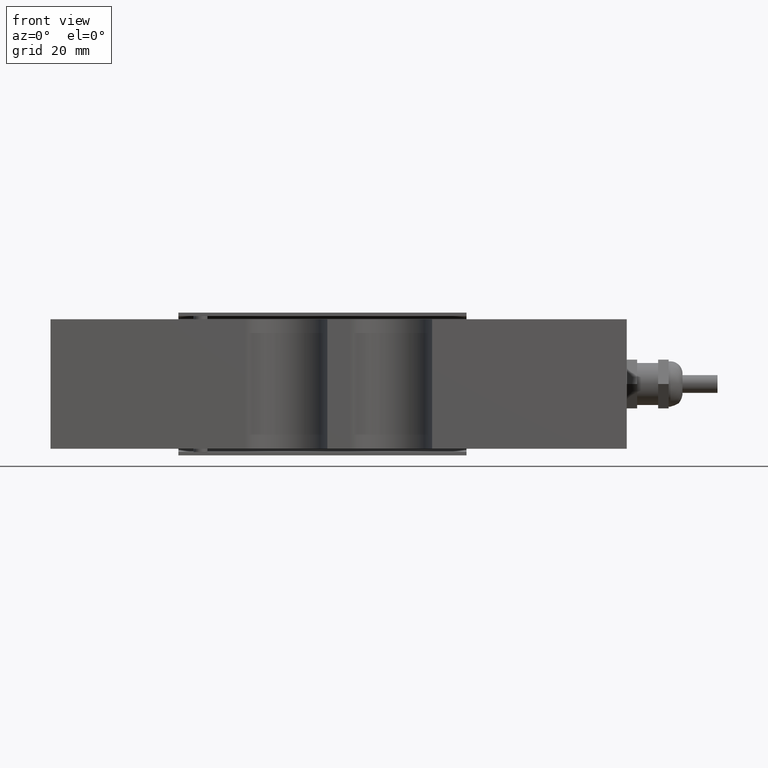
[diagram: clean part render]
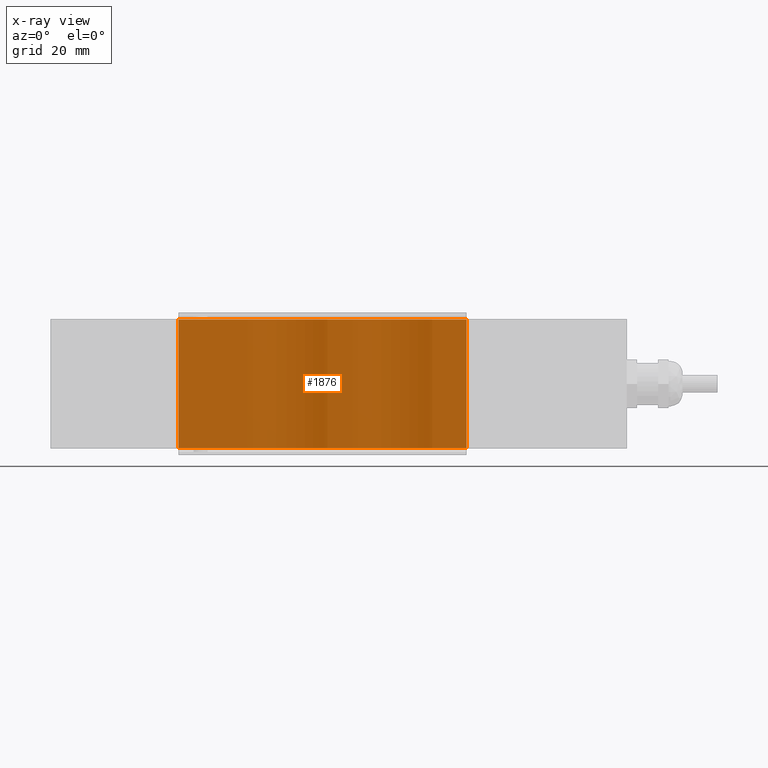
[diagram: x-ray — body ghosted, one internal face saturated and labeled with its STEP entity id]
A machine part, front view, then the same camera in x-ray: the body is ghosted and one INTERNAL B-rep face — a face not visible from any outside direction — is saturated and labeled: STEP entity #1876.
In plain terms, the highlighted planar face has unit normal (0, -1, 0).
Its self-contained STEP definition (entity closure, byte-faithful):
#141=PLANE('',#2060);
#252=FACE_OUTER_BOUND('',#386,.T.);
#386=EDGE_LOOP('',(#1672,#1673,#1674,#1675));
#534=LINE('',#4357,#690);
#535=LINE('',#4361,#691);
#536=LINE('',#4363,#692);
#537=LINE('',#4364,#693);
#690=VECTOR('',#2523,0.393700787401575);
#691=VECTOR('',#2528,0.0566929133858268);
#692=VECTOR('',#2529,0.393700787401575);
#693=VECTOR('',#2530,0.0566929133858268);
#923=VERTEX_POINT('',#4343);
#924=VERTEX_POINT('',#4347);
#926=VERTEX_POINT('',#4360);
#927=VERTEX_POINT('',#4362);
#1175=EDGE_CURVE('',#923,#924,#534,.T.);
#1176=EDGE_CURVE('',#924,#926,#535,.T.);
#1177=EDGE_CURVE('',#926,#927,#536,.T.);
#1178=EDGE_CURVE('',#923,#927,#537,.T.);
#1672=ORIENTED_EDGE('',*,*,#1175,.T.);
#1673=ORIENTED_EDGE('',*,*,#1176,.T.);
#1674=ORIENTED_EDGE('',*,*,#1177,.T.);
#1675=ORIENTED_EDGE('',*,*,#1178,.F.);
#1876=ADVANCED_FACE('',(#252),#141,.T.);
#2060=AXIS2_PLACEMENT_3D('',#4359,#2526,#2527);
#2523=DIRECTION('',(1.,0.,0.));
#2526=DIRECTION('center_axis',(0.,-1.,1.74574066942157E-15));
#2527=DIRECTION('ref_axis',(-1.,0.,0.));
#2528=DIRECTION('',(0.,1.77635683940025E-15,1.));
#2529=DIRECTION('',(-1.,0.,0.));
#2530=DIRECTION('',(0.,1.77635683940025E-15,1.));
#4343=CARTESIAN_POINT('',(-1.80708661417323,1.48562992125984,-0.726259842519685));
#4347=CARTESIAN_POINT('',(1.44291338582677,1.48562992125984,-0.726259842519685));
#4357=CARTESIAN_POINT('',(-0.994586614173229,1.48562992125984,-0.726259842519685));
#4359=CARTESIAN_POINT('Origin',(-0.182086614173229,1.48562992125984,0.0051564313107206));
#4360=CARTESIAN_POINT('',(1.44291338582677,1.48562992125984,0.726259842519685));
#4361=CARTESIAN_POINT('',(1.44291338582677,1.48562992125984,0.904365882723201));
#4362=CARTESIAN_POINT('',(-1.80708661417323,1.48562992125984,0.726259842519685));
#4363=CARTESIAN_POINT('',(-0.182086614173229,1.48562992125984,0.726259842519684));
#4364=CARTESIAN_POINT('',(-1.80708661417323,1.48562992125984,0.904365882723201));